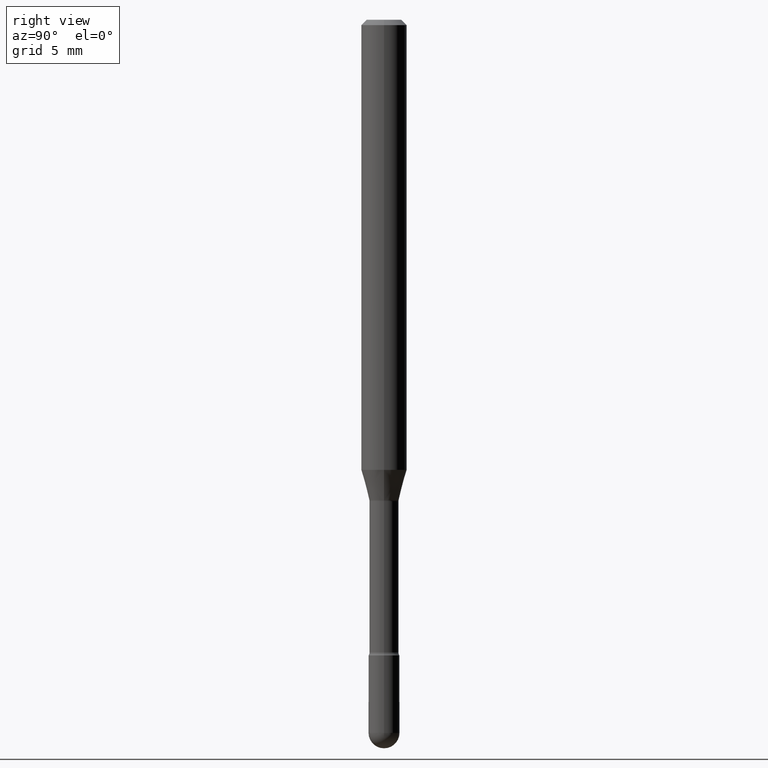
[diagram: clean part render]
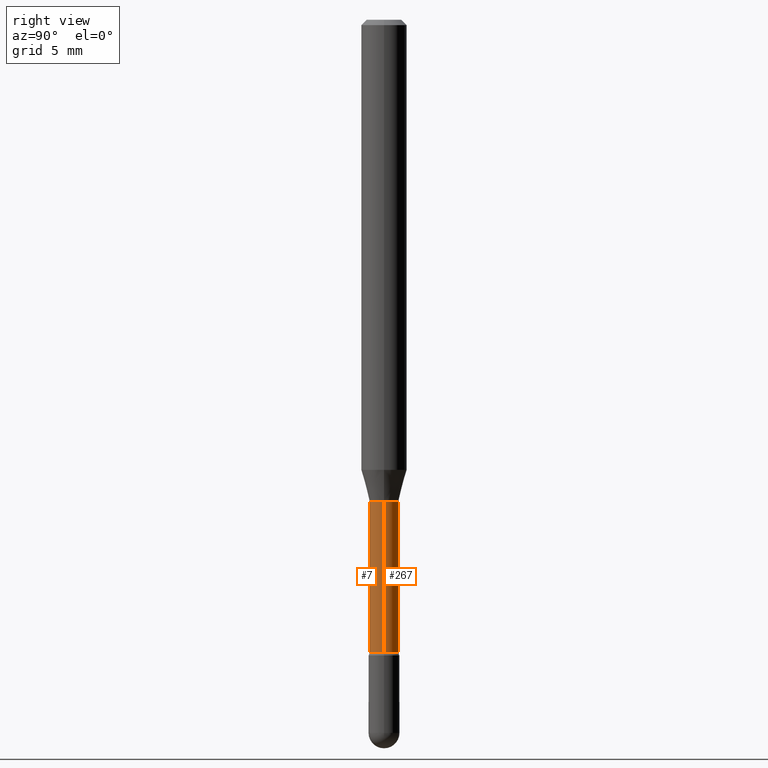
[diagram: same view with one multi-face feature highlighted, each face labeled with its STEP entity id]
A machine part, right view. The highlighted faces form ONE feature: a constant-radius fillet chain: 2 tangent blend faces with common blend radius 1.0147 mm. The faces share edges in the B-rep.
Their STEP definitions:
[1] entity #7 (Cylinder):
#7 = ADVANCED_FACE ( 'NONE', ( #364 ), #185, .T. ) ;
#18 = VERTEX_POINT ( 'NONE', #455 ) ;
#26 = CARTESIAN_POINT ( 'NONE',  ( 0.03995000000000005491, -6.342392988203315207E-15, -1.736633549139569688 ) ) ;
#31 = DIRECTION ( 'NONE',  ( 1.000000000000000000, -6.982962677686276966E-15, 0.000000000000000000 ) ) ;
#34 = EDGE_CURVE ( 'NONE', #371, #90, #347, .T. ) ;
#79 = EDGE_LOOP ( 'NONE', ( #96, #323, #95, #517 ) ) ;
#90 = VERTEX_POINT ( 'NONE', #26 ) ;
#94 = EDGE_CURVE ( 'NONE', #371, #392, #111, .T. ) ;
#95 = ORIENTED_EDGE ( 'NONE', *, *, #133, .T. ) ;
#96 = ORIENTED_EDGE ( 'NONE', *, *, #94, .F. ) ;
#111 = LINE ( 'NONE', #194, #183 ) ;
#133 = EDGE_CURVE ( 'NONE', #90, #18, #280, .T. ) ;
#170 = AXIS2_PLACEMENT_3D ( 'NONE', #361, #538, #274 ) ;
#183 = VECTOR ( 'NONE', #550, 39.37007874015748143 ) ;
#185 = CYLINDRICAL_SURFACE ( 'NONE', #170, 0.03995000000000002716 ) ;
#192 = CARTESIAN_POINT ( 'NONE',  ( 4.246883172195400307E-29, -6.063423629229748682E-15, -1.736633549139569688 ) ) ;
#194 = CARTESIAN_POINT ( 'NONE',  ( -0.03995000000000002716, 2.838618229361618935E-16, 4.780733988912441404E-16 ) ) ;
#211 = DIRECTION ( 'NONE',  ( 1.000000000000000000, -6.982962677686265922E-15, 0.000000000000000000 ) ) ;
#254 = CARTESIAN_POINT ( 'NONE',  ( -0.03994999999999999246, -5.055675142104229106E-15, -1.321974787463811252 ) ) ;
#274 = DIRECTION ( 'NONE',  ( 1.000000000000000000, -6.982962677686265922E-15, 4.858810380723266639E-29 ) ) ;
#280 = LINE ( 'NONE', #376, #309 ) ;
#309 = VECTOR ( 'NONE', #466, 39.37007874015748143 ) ;
#323 = ORIENTED_EDGE ( 'NONE', *, *, #34, .T. ) ;
#332 = EDGE_CURVE ( 'NONE', #392, #18, #469, .T. ) ;
#347 = CIRCLE ( 'NONE', #560, 0.03995000000000005491 ) ;
#361 = CARTESIAN_POINT ( 'NONE',  ( -1.169113584055446105E-44, 1.669184350826100908E-30, 4.780733988912460139E-16 ) ) ;
#364 = FACE_OUTER_BOUND ( 'NONE', #79, .T. ) ;
#368 = DIRECTION ( 'NONE',  ( -2.445468806185136597E-29, 3.491481338843145583E-15, 1.000000000000000000 ) ) ;
#371 = VERTEX_POINT ( 'NONE', #443 ) ;
#376 = CARTESIAN_POINT ( 'NONE',  ( 0.03995000000000002716, -2.789693589735648492E-16, 4.780733988912479861E-16 ) ) ;
#384 = DIRECTION ( 'NONE',  ( -2.445468806185136597E-29, 3.491481338843145583E-15, 1.000000000000000000 ) ) ;
#389 = CARTESIAN_POINT ( 'NONE',  ( 3.232848105305976376E-29, -4.615650300851030950E-15, -1.321974787463811252 ) ) ;
#392 = VERTEX_POINT ( 'NONE', #254 ) ;
#406 = AXIS2_PLACEMENT_3D ( 'NONE', #389, #384, #31 ) ;
#443 = CARTESIAN_POINT ( 'NONE',  ( -0.03995000000000005491, -5.785108039938417774E-15, -1.736633549139569688 ) ) ;
#455 = CARTESIAN_POINT ( 'NONE',  ( 0.03994999999999999246, -4.894619659824597475E-15, -1.321974787463811252 ) ) ;
#466 = DIRECTION ( 'NONE',  ( -2.445468806185136877E-29, 3.491481338843145188E-15, 1.000000000000000000 ) ) ;
#469 = CIRCLE ( 'NONE', #406, 0.03994999999999999246 ) ;
#517 = ORIENTED_EDGE ( 'NONE', *, *, #332, .F. ) ;
#538 = DIRECTION ( 'NONE',  ( -2.445468806185136597E-29, 3.491481338843145583E-15, 1.000000000000000000 ) ) ;
#550 = DIRECTION ( 'NONE',  ( -2.445468806185136877E-29, 3.491481338843145188E-15, 1.000000000000000000 ) ) ;
#560 = AXIS2_PLACEMENT_3D ( 'NONE', #192, #368, #211 ) ;
[2] entity #267 (Cylinder):
#4 = EDGE_CURVE ( 'NONE', #18, #392, #115, .T. ) ;
#17 = DIRECTION ( 'NONE',  ( 1.000000000000000000, -6.982962677686276966E-15, 0.000000000000000000 ) ) ;
#18 = VERTEX_POINT ( 'NONE', #455 ) ;
#20 = CARTESIAN_POINT ( 'NONE',  ( 4.246883172195400307E-29, -6.063423629229748682E-15, -1.736633549139569688 ) ) ;
#26 = CARTESIAN_POINT ( 'NONE',  ( 0.03995000000000005491, -6.342392988203315207E-15, -1.736633549139569688 ) ) ;
#27 = EDGE_CURVE ( 'NONE', #90, #371, #487, .T. ) ;
#57 = ORIENTED_EDGE ( 'NONE', *, *, #4, .F. ) ;
#74 = DIRECTION ( 'NONE',  ( -2.445468806185136597E-29, 3.491481338843145583E-15, 1.000000000000000000 ) ) ;
#90 = VERTEX_POINT ( 'NONE', #26 ) ;
#94 = EDGE_CURVE ( 'NONE', #371, #392, #111, .T. ) ;
#111 = LINE ( 'NONE', #194, #183 ) ;
#115 = CIRCLE ( 'NONE', #242, 0.03994999999999999246 ) ;
#133 = EDGE_CURVE ( 'NONE', #90, #18, #280, .T. ) ;
#183 = VECTOR ( 'NONE', #550, 39.37007874015748143 ) ;
#188 = DIRECTION ( 'NONE',  ( -2.445468806185136597E-29, 3.491481338843145583E-15, 1.000000000000000000 ) ) ;
#194 = CARTESIAN_POINT ( 'NONE',  ( -0.03995000000000002716, 2.838618229361618935E-16, 4.780733988912441404E-16 ) ) ;
#226 = CARTESIAN_POINT ( 'NONE',  ( 3.232848105305976376E-29, -4.615650300851030950E-15, -1.321974787463811252 ) ) ;
#237 = DIRECTION ( 'NONE',  ( 1.000000000000000000, -6.982962677686265922E-15, 0.000000000000000000 ) ) ;
#242 = AXIS2_PLACEMENT_3D ( 'NONE', #226, #405, #17 ) ;
#254 = CARTESIAN_POINT ( 'NONE',  ( -0.03994999999999999246, -5.055675142104229106E-15, -1.321974787463811252 ) ) ;
#267 = ADVANCED_FACE ( 'NONE', ( #432 ), #336, .T. ) ;
#280 = LINE ( 'NONE', #376, #309 ) ;
#291 = CARTESIAN_POINT ( 'NONE',  ( -1.169113584055446105E-44, 1.669184350826100908E-30, 4.780733988912460139E-16 ) ) ;
#308 = AXIS2_PLACEMENT_3D ( 'NONE', #20, #188, #237 ) ;
#309 = VECTOR ( 'NONE', #466, 39.37007874015748143 ) ;
#336 = CYLINDRICAL_SURFACE ( 'NONE', #391, 0.03995000000000002716 ) ;
#371 = VERTEX_POINT ( 'NONE', #443 ) ;
#375 = DIRECTION ( 'NONE',  ( 1.000000000000000000, -6.982962677686265922E-15, 4.858810380723266639E-29 ) ) ;
#376 = CARTESIAN_POINT ( 'NONE',  ( 0.03995000000000002716, -2.789693589735648492E-16, 4.780733988912479861E-16 ) ) ;
#391 = AXIS2_PLACEMENT_3D ( 'NONE', #291, #74, #375 ) ;
#392 = VERTEX_POINT ( 'NONE', #254 ) ;
#405 = DIRECTION ( 'NONE',  ( -2.445468806185136597E-29, 3.491481338843145583E-15, 1.000000000000000000 ) ) ;
#411 = ORIENTED_EDGE ( 'NONE', *, *, #27, .T. ) ;
#428 = ORIENTED_EDGE ( 'NONE', *, *, #133, .F. ) ;
#432 = FACE_OUTER_BOUND ( 'NONE', #564, .T. ) ;
#443 = CARTESIAN_POINT ( 'NONE',  ( -0.03995000000000005491, -5.785108039938417774E-15, -1.736633549139569688 ) ) ;
#455 = CARTESIAN_POINT ( 'NONE',  ( 0.03994999999999999246, -4.894619659824597475E-15, -1.321974787463811252 ) ) ;
#460 = ORIENTED_EDGE ( 'NONE', *, *, #94, .T. ) ;
#466 = DIRECTION ( 'NONE',  ( -2.445468806185136877E-29, 3.491481338843145188E-15, 1.000000000000000000 ) ) ;
#487 = CIRCLE ( 'NONE', #308, 0.03995000000000005491 ) ;
#550 = DIRECTION ( 'NONE',  ( -2.445468806185136877E-29, 3.491481338843145188E-15, 1.000000000000000000 ) ) ;
#564 = EDGE_LOOP ( 'NONE', ( #411, #460, #57, #428 ) ) ;